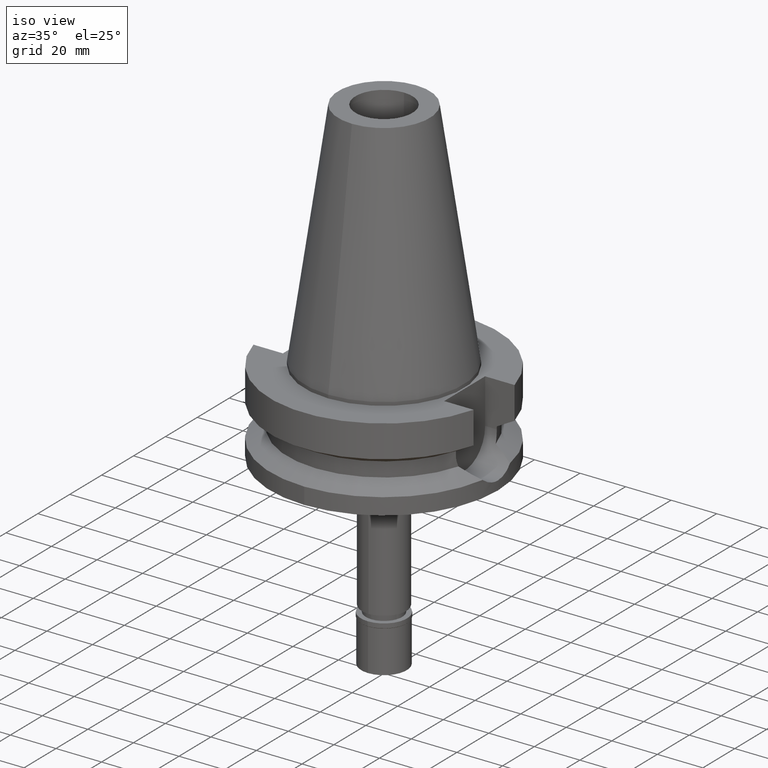
[diagram: clean part render]
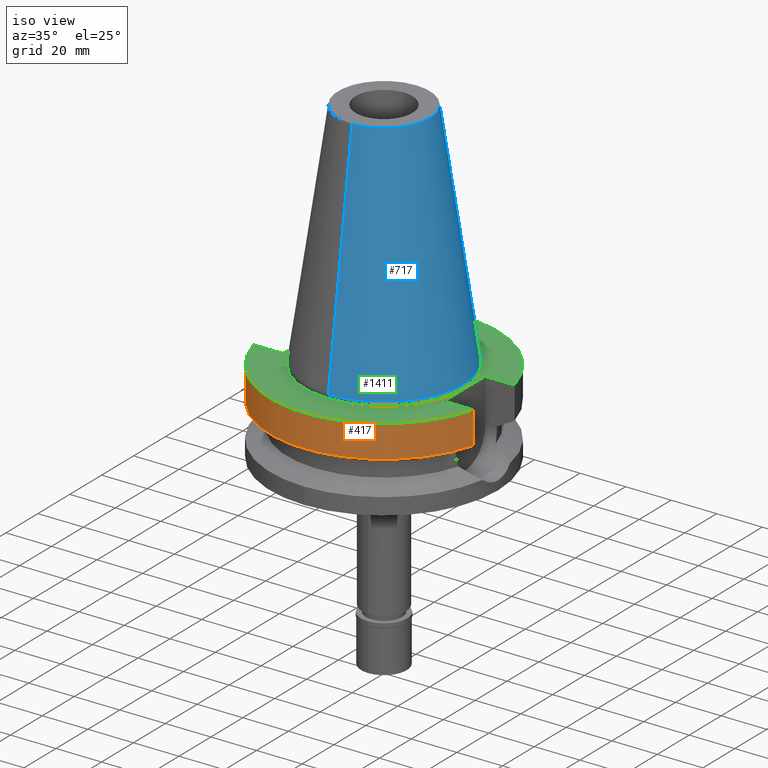
[diagram: same view with three faces highlighted in distinct colors, each labeled with its STEP entity id]
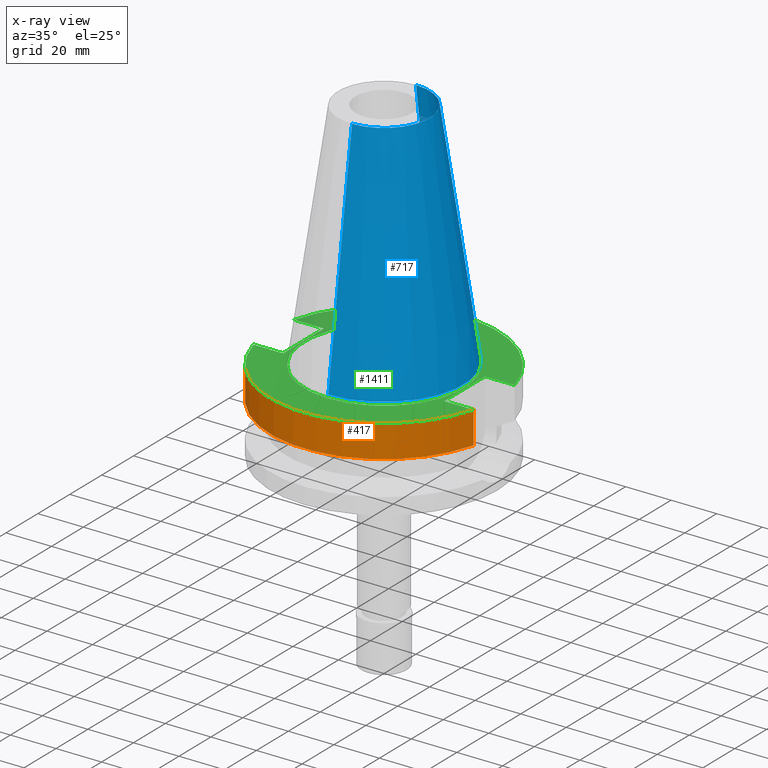
[diagram: x-ray of the same camera — body ghosted, the three highlighted faces saturated]
A machine part, iso view with three faces highlighted in distinct colors.
The next image is the same camera in x-ray (body ghosted, the three faces saturated) — at least one of them is partly hidden behind the body in this view.
Their STEP definitions:

[orange] entity #417 — the highlighted cylindrical surface (partial cylindrical patch) has radius 50 mm, axis along (0, 0, -1).
#61 = CARTESIAN_POINT ( 'NONE',  ( 48.32057015392000210, -12.84999999999999964, -1.500000000000000000 ) ) ;
#142 = EDGE_CURVE ( 'NONE', #2630, #1131, #2673, .T. ) ;
#145 = CARTESIAN_POINT ( 'NONE',  ( 48.32057015392000210, -12.84999999999999964, -1.500000000000000000 ) ) ;
#182 = CARTESIAN_POINT ( 'NONE',  ( -48.32057015392000210, -12.84999999999999964, -1.500000000000000000 ) ) ;
#309 = EDGE_CURVE ( 'NONE', #3111, #1131, #351, .T. ) ;
#351 = CIRCLE ( 'NONE', #1372, 50.00000000000000000 ) ;
#362 = LINE ( 'NONE', #61, #3067 ) ;
#417 = ADVANCED_FACE ( 'NONE', ( #978 ), #1993, .T. ) ;
#453 = AXIS2_PLACEMENT_3D ( 'NONE', #547, #1520, #514 ) ;
#514 = DIRECTION ( 'NONE',  ( 0.0000000000000000000, -1.000000000000000000, 0.0000000000000000000 ) ) ;
#517 = DIRECTION ( 'NONE',  ( 0.0000000000000000000, 0.0000000000000000000, 1.000000000000000000 ) ) ;
#547 = CARTESIAN_POINT ( 'NONE',  ( 0.0000000000000000000, 2.602251983507999750E-14, 112.4900000000000091 ) ) ;
#573 = DIRECTION ( 'NONE',  ( -7.239906002265711680E-08, -2.722460381507895401E-07, -0.9999999999999603650 ) ) ;
#681 = ORIENTED_EDGE ( 'NONE', *, *, #838, .T. ) ;
#782 = EDGE_LOOP ( 'NONE', ( #928, #681, #1209, #2724 ) ) ;
#838 = EDGE_CURVE ( 'NONE', #2630, #2020, #1943, .T. ) ;
#894 = EDGE_CURVE ( 'NONE', #3111, #2020, #362, .T. ) ;
#928 = ORIENTED_EDGE ( 'NONE', *, *, #142, .F. ) ;
#978 = FACE_OUTER_BOUND ( 'NONE', #782, .T. ) ;
#1131 = VERTEX_POINT ( 'NONE', #182 ) ;
#1209 = ORIENTED_EDGE ( 'NONE', *, *, #894, .F. ) ;
#1271 = DIRECTION ( 'NONE',  ( 0.0000000000000000000, -1.000000000000000000, 0.0000000000000000000 ) ) ;
#1372 = AXIS2_PLACEMENT_3D ( 'NONE', #1970, #2222, #1271 ) ;
#1396 = CARTESIAN_POINT ( 'NONE',  ( -48.32056912872000254, -12.85000385512999976, -15.66265770180999972 ) ) ;
#1439 = CARTESIAN_POINT ( 'NONE',  ( 48.32057015392000210, -12.84999999999999964, -15.66269223573000069 ) ) ;
#1454 = DIRECTION ( 'NONE',  ( 0.0000000000000000000, -1.000000000000000000, 0.0000000000000000000 ) ) ;
#1497 = AXIS2_PLACEMENT_3D ( 'NONE', #2706, #517, #1454 ) ;
#1520 = DIRECTION ( 'NONE',  ( 0.0000000000000000000, 0.0000000000000000000, -1.000000000000000000 ) ) ;
#1943 = CIRCLE ( 'NONE', #1497, 50.00000000000000000 ) ;
#1970 = CARTESIAN_POINT ( 'NONE',  ( 0.0000000000000000000, 2.602251983507999750E-14, -1.500000000000000000 ) ) ;
#1993 = CYLINDRICAL_SURFACE ( 'NONE', #453, 50.00000000000000000 ) ;
#2020 = VERTEX_POINT ( 'NONE', #1439 ) ;
#2222 = DIRECTION ( 'NONE',  ( 0.0000000000000000000, 0.0000000000000000000, -1.000000000000000000 ) ) ;
#2261 = CARTESIAN_POINT ( 'NONE',  ( -48.32056912872000254, -12.85000385512999976, -15.66265770180999972 ) ) ;
#2630 = VERTEX_POINT ( 'NONE', #2261 ) ;
#2673 = LINE ( 'NONE', #1396, #2937 ) ;
#2706 = CARTESIAN_POINT ( 'NONE',  ( 0.0000000000000000000, 1.006319759053999930E-14, -15.66269223573000069 ) ) ;
#2724 = ORIENTED_EDGE ( 'NONE', *, *, #309, .T. ) ;
#2877 = DIRECTION ( 'NONE',  ( -7.238780080895711082E-08, 2.722036990772890963E-07, 0.9999999999999603650 ) ) ;
#2937 = VECTOR ( 'NONE', #2877, 1000.000000000000114 ) ;
#3067 = VECTOR ( 'NONE', #573, 1000.000000000000114 ) ;
#3111 = VERTEX_POINT ( 'NONE', #145 ) ;

[blue] entity #717 — the highlighted conical surface has half-angle 8.297 deg.
#103 = LINE ( 'NONE', #1083, #2802 ) ;
#125 = VERTEX_POINT ( 'NONE', #1177 ) ;
#232 = ORIENTED_EDGE ( 'NONE', *, *, #949, .F. ) ;
#263 = EDGE_LOOP ( 'NONE', ( #2534, #582, #867, #232 ) ) ;
#394 = DIRECTION ( 'NONE',  ( 0.0000000000000000000, 1.000000000000000000, 0.0000000000000000000 ) ) ;
#568 = EDGE_CURVE ( 'NONE', #805, #125, #103, .T. ) ;
#582 = ORIENTED_EDGE ( 'NONE', *, *, #568, .T. ) ;
#595 = CARTESIAN_POINT ( 'NONE',  ( 0.0000000000000000000, 1.847992019912999597E-14, 3.979039320256999774E-13 ) ) ;
#717 = ADVANCED_FACE ( 'NONE', ( #780 ), #1574, .T. ) ;
#780 = FACE_OUTER_BOUND ( 'NONE', #263, .T. ) ;
#805 = VERTEX_POINT ( 'NONE', #2174 ) ;
#867 = ORIENTED_EDGE ( 'NONE', *, *, #1746, .F. ) ;
#949 = EDGE_CURVE ( 'NONE', #1059, #3038, #2792, .T. ) ;
#982 = DIRECTION ( 'NONE',  ( 0.0000000000000000000, 0.0000000000000000000, -1.000000000000000000 ) ) ;
#986 = AXIS2_PLACEMENT_3D ( 'NONE', #1338, #2801, #1560 ) ;
#998 = CARTESIAN_POINT ( 'NONE',  ( 0.0000000000000000000, 1.847992019912999597E-14, 50.89999999999999858 ) ) ;
#1059 = VERTEX_POINT ( 'NONE', #1589 ) ;
#1083 = CARTESIAN_POINT ( 'NONE',  ( 0.0000000000000000000, -20.07942971896000017, 101.7999999999999972 ) ) ;
#1127 = CARTESIAN_POINT ( 'NONE',  ( 0.0000000000000000000, 34.92499999999999716, 4.050093593833000200E-13 ) ) ;
#1177 = CARTESIAN_POINT ( 'NONE',  ( 0.0000000000000000000, -34.92499999999999716, 4.050093593833000200E-13 ) ) ;
#1269 = AXIS2_PLACEMENT_3D ( 'NONE', #998, #982, #2904 ) ;
#1331 = CIRCLE ( 'NONE', #1427, 34.92499999999999716 ) ;
#1338 = CARTESIAN_POINT ( 'NONE',  ( 0.0000000000000000000, 1.847992019912999597E-14, 101.7999999999999972 ) ) ;
#1427 = AXIS2_PLACEMENT_3D ( 'NONE', #595, #2588, #394 ) ;
#1549 = CIRCLE ( 'NONE', #986, 20.07942971896000017 ) ;
#1560 = DIRECTION ( 'NONE',  ( 0.0000000000000000000, 1.000000000000000000, 0.0000000000000000000 ) ) ;
#1574 = CONICAL_SURFACE ( 'NONE', #1269, 27.50221485948000222, 0.1448099680379422438 ) ;
#1589 = CARTESIAN_POINT ( 'NONE',  ( 0.0000000000000000000, 20.07942971896000017, 101.7999999999999972 ) ) ;
#1746 = EDGE_CURVE ( 'NONE', #3038, #125, #1331, .T. ) ;
#1799 = VECTOR ( 'NONE', #3003, 1000.000000000000114 ) ;
#2172 = EDGE_CURVE ( 'NONE', #1059, #805, #1549, .T. ) ;
#2174 = CARTESIAN_POINT ( 'NONE',  ( 0.0000000000000000000, -20.07942971896000017, 101.7999999999999972 ) ) ;
#2534 = ORIENTED_EDGE ( 'NONE', *, *, #2172, .T. ) ;
#2588 = DIRECTION ( 'NONE',  ( 0.0000000000000000000, 0.0000000000000000000, -1.000000000000000000 ) ) ;
#2792 = LINE ( 'NONE', #3035, #1799 ) ;
#2801 = DIRECTION ( 'NONE',  ( 0.0000000000000000000, 0.0000000000000000000, -1.000000000000000000 ) ) ;
#2802 = VECTOR ( 'NONE', #3014, 1000.000000000000114 ) ;
#2904 = DIRECTION ( 'NONE',  ( 0.0000000000000000000, -1.000000000000000000, 0.0000000000000000000 ) ) ;
#3003 = DIRECTION ( 'NONE',  ( 0.0000000000000000000, 0.1443043893538948075, -0.9895333461855641000 ) ) ;
#3014 = DIRECTION ( 'NONE',  ( 0.0000000000000000000, -0.1443043893538948075, -0.9895333461855641000 ) ) ;
#3035 = CARTESIAN_POINT ( 'NONE',  ( 0.0000000000000000000, 20.07942971896000017, 101.7999999999999972 ) ) ;
#3038 = VERTEX_POINT ( 'NONE', #1127 ) ;

[green] entity #1411 — the highlighted planar face has unit normal (0, 0, -1).
#28 = EDGE_LOOP ( 'NONE', ( #1727, #794 ) ) ;
#80 = EDGE_CURVE ( 'NONE', #96, #206, #2994, .T. ) ;
#85 = PLANE ( 'NONE',  #1392 ) ;
#92 = CARTESIAN_POINT ( 'NONE',  ( 35.39999999999999858, -12.84999999999999964, -1.500000000000000000 ) ) ;
#96 = VERTEX_POINT ( 'NONE', #3133 ) ;
#138 = EDGE_CURVE ( 'NONE', #206, #96, #2347, .T. ) ;
#145 = CARTESIAN_POINT ( 'NONE',  ( 48.32057015392000210, -12.84999999999999964, -1.500000000000000000 ) ) ;
#153 = LINE ( 'NONE', #611, #1022 ) ;
#182 = CARTESIAN_POINT ( 'NONE',  ( -48.32057015392000210, -12.84999999999999964, -1.500000000000000000 ) ) ;
#206 = VERTEX_POINT ( 'NONE', #2376 ) ;
#211 = DIRECTION ( 'NONE',  ( 0.0000000000000000000, 0.0000000000000000000, 1.000000000000000000 ) ) ;
#226 = DIRECTION ( 'NONE',  ( 0.0000000000000000000, -1.000000000000000000, 0.0000000000000000000 ) ) ;
#309 = EDGE_CURVE ( 'NONE', #3111, #1131, #351, .T. ) ;
#351 = CIRCLE ( 'NONE', #1372, 50.00000000000000000 ) ;
#368 = VERTEX_POINT ( 'NONE', #1704 ) ;
#395 = DIRECTION ( 'NONE',  ( 0.0000000000000000000, 0.0000000000000000000, -1.000000000000000000 ) ) ;
#421 = CARTESIAN_POINT ( 'NONE',  ( 0.0000000000000000000, 2.602251983507999750E-14, -1.500000000000000000 ) ) ;
#425 = VECTOR ( 'NONE', #2373, 1000.000000000000000 ) ;
#534 = LINE ( 'NONE', #1772, #2050 ) ;
#611 = CARTESIAN_POINT ( 'NONE',  ( -35.39999999999999858, -12.84999999999999964, -1.500000000000000000 ) ) ;
#622 = CARTESIAN_POINT ( 'NONE',  ( -48.32057015392000210, 12.84999999999999964, -1.500000000000000000 ) ) ;
#706 = EDGE_CURVE ( 'NONE', #2191, #368, #757, .T. ) ;
#757 = CIRCLE ( 'NONE', #2079, 50.00000000000000000 ) ;
#761 = CARTESIAN_POINT ( 'NONE',  ( -35.39999999999999858, 12.84999999999999964, -1.500000000000000000 ) ) ;
#794 = ORIENTED_EDGE ( 'NONE', *, *, #80, .F. ) ;
#873 = VERTEX_POINT ( 'NONE', #92 ) ;
#942 = EDGE_CURVE ( 'NONE', #873, #3111, #534, .T. ) ;
#1022 = VECTOR ( 'NONE', #1109, 1000.000000000000000 ) ;
#1109 = DIRECTION ( 'NONE',  ( -1.000000000000000000, 0.0000000000000000000, 0.0000000000000000000 ) ) ;
#1131 = VERTEX_POINT ( 'NONE', #182 ) ;
#1218 = LINE ( 'NONE', #1931, #2573 ) ;
#1235 = ORIENTED_EDGE ( 'NONE', *, *, #1266, .F. ) ;
#1266 = EDGE_CURVE ( 'NONE', #1568, #873, #1218, .T. ) ;
#1271 = DIRECTION ( 'NONE',  ( 0.0000000000000000000, -1.000000000000000000, 0.0000000000000000000 ) ) ;
#1295 = EDGE_LOOP ( 'NONE', ( #2723, #2816, #2471, #1235, #2664, #2649, #2349, #2292 ) ) ;
#1342 = VERTEX_POINT ( 'NONE', #3013 ) ;
#1372 = AXIS2_PLACEMENT_3D ( 'NONE', #1970, #2222, #1271 ) ;
#1373 = AXIS2_PLACEMENT_3D ( 'NONE', #1686, #3076, #1673 ) ;
#1392 = AXIS2_PLACEMENT_3D ( 'NONE', #1519, #2997, #2963 ) ;
#1411 = ADVANCED_FACE ( 'NONE', ( #2273, #1504 ), #85, .F. ) ;
#1504 = FACE_BOUND ( 'NONE', #28, .T. ) ;
#1519 = CARTESIAN_POINT ( 'NONE',  ( 0.0000000000000000000, 1.206277097159999845E-14, -1.500000000000000000 ) ) ;
#1551 = EDGE_CURVE ( 'NONE', #1568, #368, #1859, .T. ) ;
#1564 = VERTEX_POINT ( 'NONE', #3058 ) ;
#1568 = VERTEX_POINT ( 'NONE', #1616 ) ;
#1602 = DIRECTION ( 'NONE',  ( 1.000000000000000000, 0.0000000000000000000, 0.0000000000000000000 ) ) ;
#1616 = CARTESIAN_POINT ( 'NONE',  ( 35.39999999999999858, 12.84999999999999964, -1.500000000000000000 ) ) ;
#1648 = VECTOR ( 'NONE', #1602, 1000.000000000000000 ) ;
#1662 = DIRECTION ( 'NONE',  ( 0.0000000000000000000, -1.000000000000000000, 0.0000000000000000000 ) ) ;
#1667 = CARTESIAN_POINT ( 'NONE',  ( 0.0000000000000000000, 2.602251983507999750E-14, -1.500000000000000000 ) ) ;
#1673 = DIRECTION ( 'NONE',  ( 0.0000000000000000000, 1.000000000000000000, 0.0000000000000000000 ) ) ;
#1686 = CARTESIAN_POINT ( 'NONE',  ( 0.0000000000000000000, 2.602251983507999750E-14, -1.500000000000000000 ) ) ;
#1704 = CARTESIAN_POINT ( 'NONE',  ( 48.32057015392000210, 12.84999999999999964, -1.500000000000000000 ) ) ;
#1727 = ORIENTED_EDGE ( 'NONE', *, *, #138, .F. ) ;
#1772 = CARTESIAN_POINT ( 'NONE',  ( 35.39999999999999858, -12.84999999999999964, -1.500000000000000000 ) ) ;
#1810 = DIRECTION ( 'NONE',  ( 1.000000000000000000, 0.0000000000000000000, 0.0000000000000000000 ) ) ;
#1820 = EDGE_CURVE ( 'NONE', #1564, #1131, #153, .T. ) ;
#1853 = DIRECTION ( 'NONE',  ( 0.0000000000000000000, 1.000000000000000000, 0.0000000000000000000 ) ) ;
#1859 = LINE ( 'NONE', #2091, #1648 ) ;
#1931 = CARTESIAN_POINT ( 'NONE',  ( 35.39999999999999858, 12.84999999999999964, -1.500000000000000000 ) ) ;
#1970 = CARTESIAN_POINT ( 'NONE',  ( 0.0000000000000000000, 2.602251983507999750E-14, -1.500000000000000000 ) ) ;
#2050 = VECTOR ( 'NONE', #1810, 1000.000000000000000 ) ;
#2079 = AXIS2_PLACEMENT_3D ( 'NONE', #1667, #395, #1853 ) ;
#2091 = CARTESIAN_POINT ( 'NONE',  ( 35.39999999999999858, 12.84999999999999964, -1.500000000000000000 ) ) ;
#2123 = LINE ( 'NONE', #3059, #425 ) ;
#2146 = EDGE_CURVE ( 'NONE', #1342, #2191, #2948, .T. ) ;
#2191 = VERTEX_POINT ( 'NONE', #622 ) ;
#2202 = DIRECTION ( 'NONE',  ( -1.000000000000000000, 0.0000000000000000000, 0.0000000000000000000 ) ) ;
#2222 = DIRECTION ( 'NONE',  ( 0.0000000000000000000, 0.0000000000000000000, -1.000000000000000000 ) ) ;
#2273 = FACE_OUTER_BOUND ( 'NONE', #1295, .T. ) ;
#2292 = ORIENTED_EDGE ( 'NONE', *, *, #2407, .F. ) ;
#2347 = CIRCLE ( 'NONE', #1373, 34.92499999999999716 ) ;
#2349 = ORIENTED_EDGE ( 'NONE', *, *, #2146, .F. ) ;
#2373 = DIRECTION ( 'NONE',  ( 0.0000000000000000000, 1.000000000000000000, 0.0000000000000000000 ) ) ;
#2376 = CARTESIAN_POINT ( 'NONE',  ( 0.0000000000000000000, 34.92499999999999716, -1.500000000000000000 ) ) ;
#2407 = EDGE_CURVE ( 'NONE', #1564, #1342, #2123, .T. ) ;
#2471 = ORIENTED_EDGE ( 'NONE', *, *, #942, .F. ) ;
#2573 = VECTOR ( 'NONE', #226, 1000.000000000000000 ) ;
#2602 = AXIS2_PLACEMENT_3D ( 'NONE', #421, #211, #1662 ) ;
#2649 = ORIENTED_EDGE ( 'NONE', *, *, #706, .F. ) ;
#2664 = ORIENTED_EDGE ( 'NONE', *, *, #1551, .T. ) ;
#2665 = VECTOR ( 'NONE', #2202, 1000.000000000000000 ) ;
#2723 = ORIENTED_EDGE ( 'NONE', *, *, #1820, .T. ) ;
#2816 = ORIENTED_EDGE ( 'NONE', *, *, #309, .F. ) ;
#2948 = LINE ( 'NONE', #761, #2665 ) ;
#2963 = DIRECTION ( 'NONE',  ( 0.0000000000000000000, -1.000000000000000000, 0.0000000000000000000 ) ) ;
#2994 = CIRCLE ( 'NONE', #2602, 34.92499999999999716 ) ;
#2997 = DIRECTION ( 'NONE',  ( 0.0000000000000000000, 0.0000000000000000000, -1.000000000000000000 ) ) ;
#3013 = CARTESIAN_POINT ( 'NONE',  ( -35.39999999999999858, 12.84999999999999964, -1.500000000000000000 ) ) ;
#3058 = CARTESIAN_POINT ( 'NONE',  ( -35.39999999999999858, -12.84999999999999964, -1.500000000000000000 ) ) ;
#3059 = CARTESIAN_POINT ( 'NONE',  ( -35.39999999999999858, -12.84999999999999964, -1.500000000000000000 ) ) ;
#3076 = DIRECTION ( 'NONE',  ( 0.0000000000000000000, 0.0000000000000000000, 1.000000000000000000 ) ) ;
#3111 = VERTEX_POINT ( 'NONE', #145 ) ;
#3133 = CARTESIAN_POINT ( 'NONE',  ( 0.0000000000000000000, -34.92499999999999716, -1.500000000000000000 ) ) ;